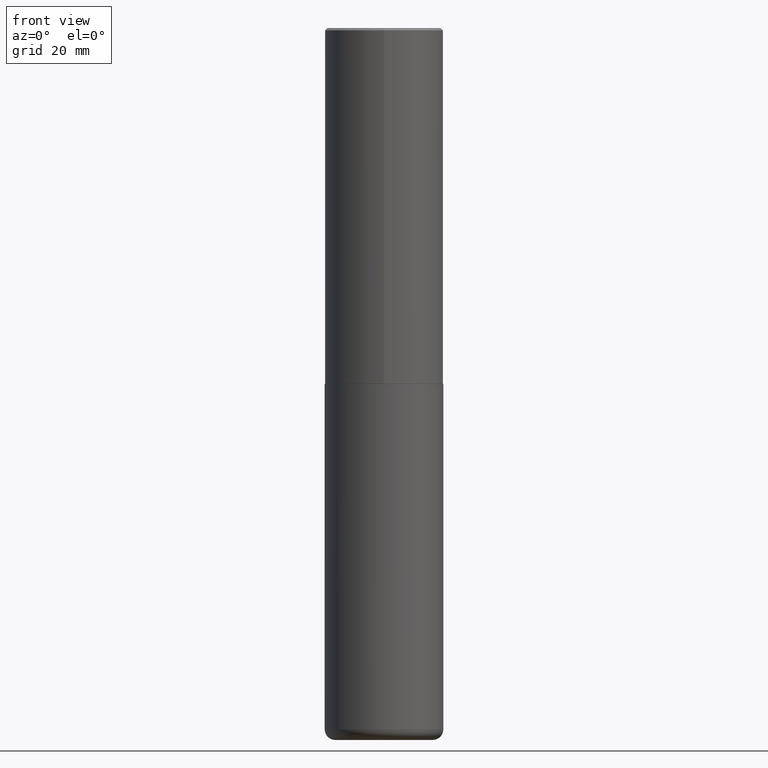
[diagram: clean part render]
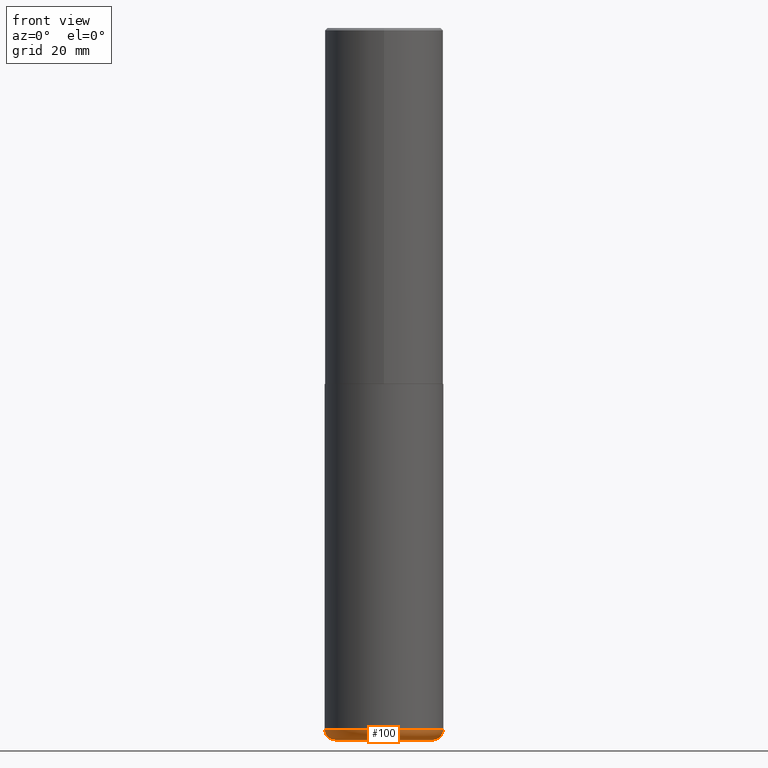
[diagram: same view with one face highlighted and labeled with its STEP entity id]
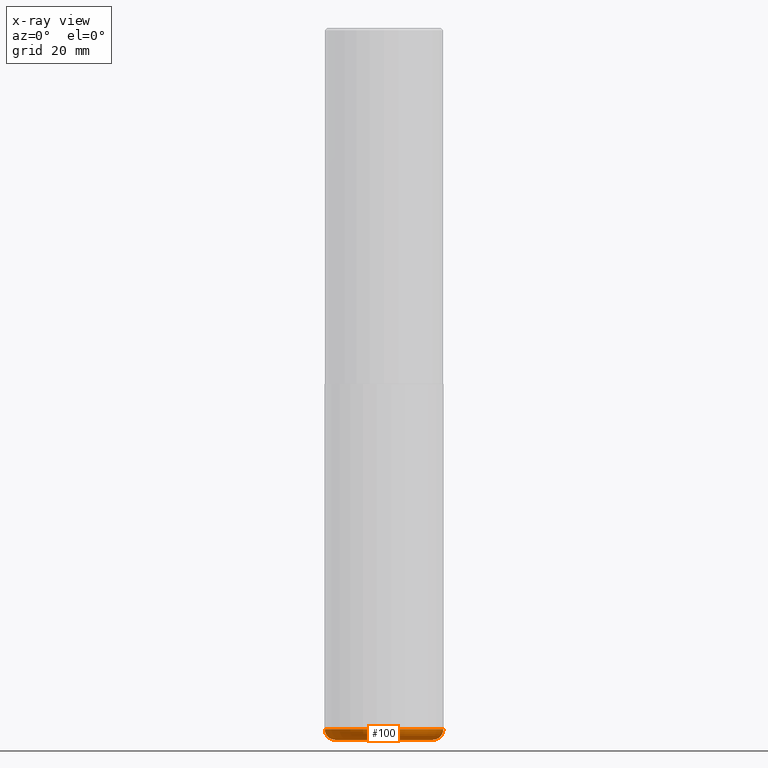
[diagram: x-ray of the same camera — body ghosted, the highlighted face saturated]
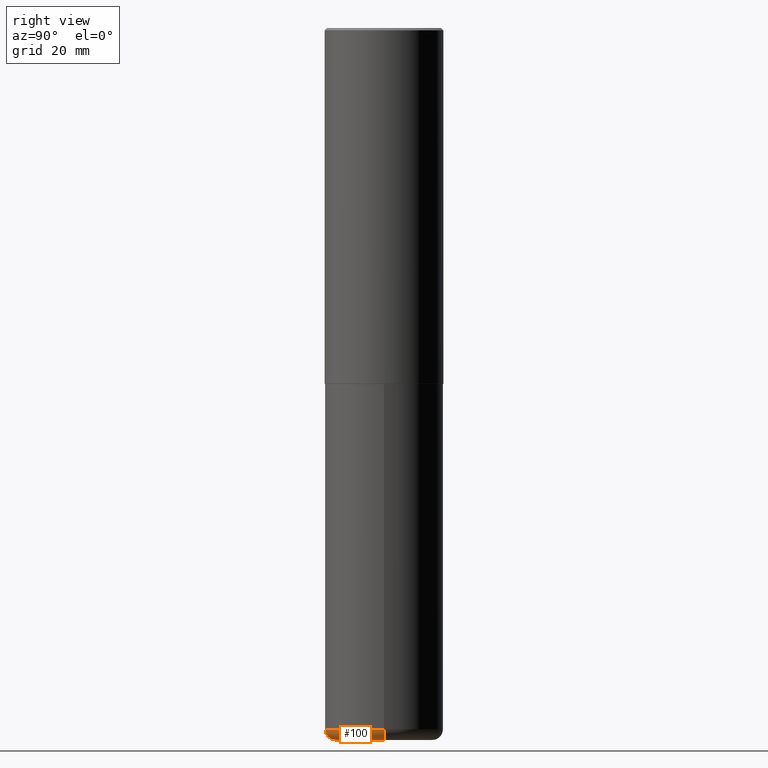
[diagram: same view with one face highlighted and labeled with its STEP entity id]
A machine part, front view. The second image highlights one B-rep face of the part: STEP entity #100.
The next image is the same camera in x-ray: the body ghosted, the highlighted face saturated — about 0% of this face is hidden behind the body in this view.
A second angle (right view) of the same face is appended — the face is thin or edge-on in the first view.
In plain terms, the highlighted toroidal blend (fillet) surface has major radius 10.414 mm and minor (blend) radius 2.286 mm.
Its self-contained STEP definition (entity closure, byte-faithful):
#13 = CARTESIAN_POINT ( 'NONE',  ( -0.4099999999999999756, -1.772142949594657767E-14, -5.910000000000000142 ) ) ;
#17 = CIRCLE ( 'NONE', #236, 0.4099999999999999756 ) ;
#21 = ORIENTED_EDGE ( 'NONE', *, *, #368, .F. ) ;
#23 = ORIENTED_EDGE ( 'NONE', *, *, #138, .T. ) ;
#38 = CIRCLE ( 'NONE', #320, 0.09000000000000020484 ) ;
#63 = CARTESIAN_POINT ( 'NONE',  ( 0.4099999999999999756, -2.381190273091024584E-14, -6.000000000000000888 ) ) ;
#89 = ORIENTED_EDGE ( 'NONE', *, *, #291, .F. ) ;
#100 = ADVANCED_FACE ( 'NONE', ( #130 ), #209, .T. ) ;
#115 = CARTESIAN_POINT ( 'NONE',  ( 1.445272064455415567E-28, -2.063465471256298944E-14, -5.910000000000000142 ) ) ;
#118 = VERTEX_POINT ( 'NONE', #63 ) ;
#130 = FACE_OUTER_BOUND ( 'NONE', #377, .T. ) ;
#138 = EDGE_CURVE ( 'NONE', #196, #118, #17, .T. ) ;
#147 = DIRECTION ( 'NONE',  ( 1.000000000000000000, -6.982962677686262766E-15, 0.000000000000000000 ) ) ;
#152 = VERTEX_POINT ( 'NONE', #200 ) ;
#155 = DIRECTION ( 'NONE',  ( -2.445468806185136597E-29, 3.491481338843145583E-15, 1.000000000000000000 ) ) ;
#169 = AXIS2_PLACEMENT_3D ( 'NONE', #394, #299, #201 ) ;
#172 = CARTESIAN_POINT ( 'NONE',  ( -0.4099999999999999756, -1.755880192510247630E-14, -6.000000000000000888 ) ) ;
#189 = CARTESIAN_POINT ( 'NONE',  ( 1.467281283711081958E-28, -2.094888803305887271E-14, -6.000000000000000888 ) ) ;
#194 = AXIS2_PLACEMENT_3D ( 'NONE', #115, #408, #147 ) ;
#196 = VERTEX_POINT ( 'NONE', #172 ) ;
#197 = DIRECTION ( 'NONE',  ( 1.000000000000000000, -6.982962677686268288E-15, 4.883557194083113462E-29 ) ) ;
#198 = DIRECTION ( 'NONE',  ( -1.000000000000000000, 7.105427357600996337E-15, 0.000000000000000000 ) ) ;
#200 = CARTESIAN_POINT ( 'NONE',  ( -0.5000000000000001110, -1.708194103376248851E-14, -5.910000000000000142 ) ) ;
#201 = DIRECTION ( 'NONE',  ( 1.000000000000000000, -6.982962677686252511E-15, 0.000000000000000000 ) ) ;
#203 = DIRECTION ( 'NONE',  ( 7.105427357601001859E-15, 1.000000000000000000, -3.491481338843145583E-15 ) ) ;
#209 = TOROIDAL_SURFACE ( 'NONE', #264, 0.4099999999999999756, 0.09000000000000020484 ) ;
#212 = EDGE_CURVE ( 'NONE', #118, #376, #243, .T. ) ;
#217 = CARTESIAN_POINT ( 'NONE',  ( 1.445272064455415567E-28, -2.063465471256298944E-14, -5.910000000000000142 ) ) ;
#236 = AXIS2_PLACEMENT_3D ( 'NONE', #189, #155, #260 ) ;
#238 = CARTESIAN_POINT ( 'NONE',  ( 0.5000000000000001110, -2.412613605140612280E-14, -5.910000000000000142 ) ) ;
#243 = CIRCLE ( 'NONE', #169, 0.09000000000000020484 ) ;
#260 = DIRECTION ( 'NONE',  ( 1.000000000000000000, -6.982962677686271444E-15, 0.000000000000000000 ) ) ;
#264 = AXIS2_PLACEMENT_3D ( 'NONE', #217, #383, #197 ) ;
#291 = EDGE_CURVE ( 'NONE', #196, #152, #38, .T. ) ;
#299 = DIRECTION ( 'NONE',  ( -6.982962677686266711E-15, -1.000000000000000000, 3.491481338843145583E-15 ) ) ;
#320 = AXIS2_PLACEMENT_3D ( 'NONE', #13, #203, #198 ) ;
#346 = CIRCLE ( 'NONE', #194, 0.5000000000000000000 ) ;
#368 = EDGE_CURVE ( 'NONE', #152, #376, #346, .T. ) ;
#376 = VERTEX_POINT ( 'NONE', #238 ) ;
#377 = EDGE_LOOP ( 'NONE', ( #89, #23, #404, #21 ) ) ;
#383 = DIRECTION ( 'NONE',  ( -2.445468806185136597E-29, 3.491481338843145583E-15, 1.000000000000000000 ) ) ;
#394 = CARTESIAN_POINT ( 'NONE',  ( 0.4099999999999999756, -2.349766941041436258E-14, -5.910000000000000142 ) ) ;
#404 = ORIENTED_EDGE ( 'NONE', *, *, #212, .T. ) ;
#408 = DIRECTION ( 'NONE',  ( -2.445468806185136597E-29, 3.491481338843145583E-15, 1.000000000000000000 ) ) ;